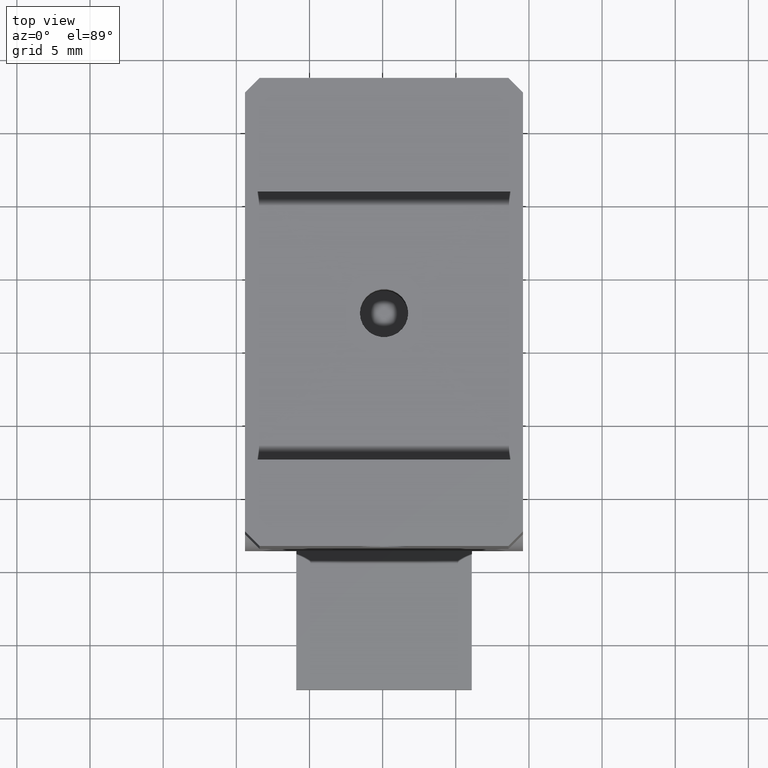
[diagram: clean part render]
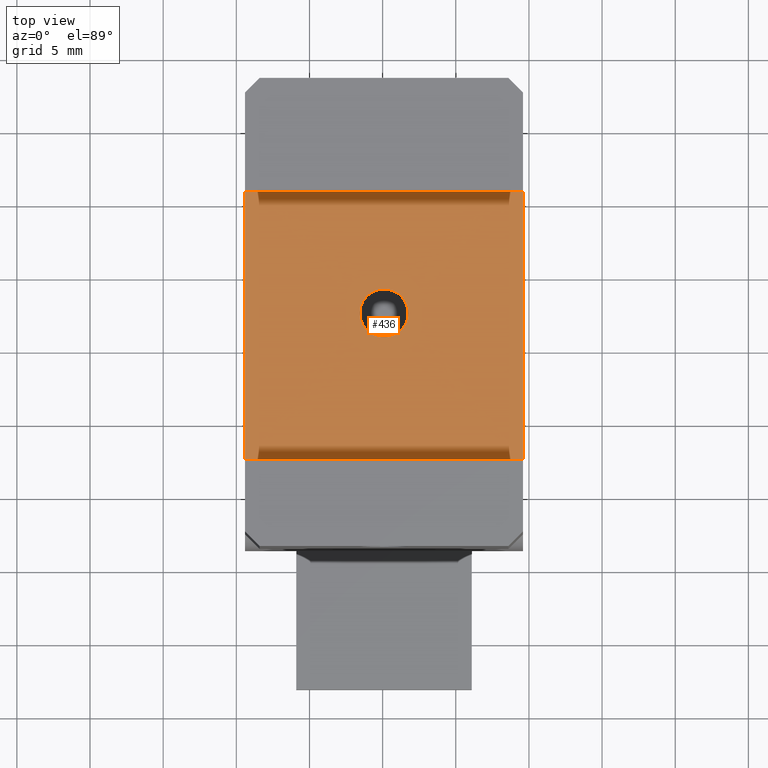
[diagram: same view with one face highlighted and labeled with its STEP entity id]
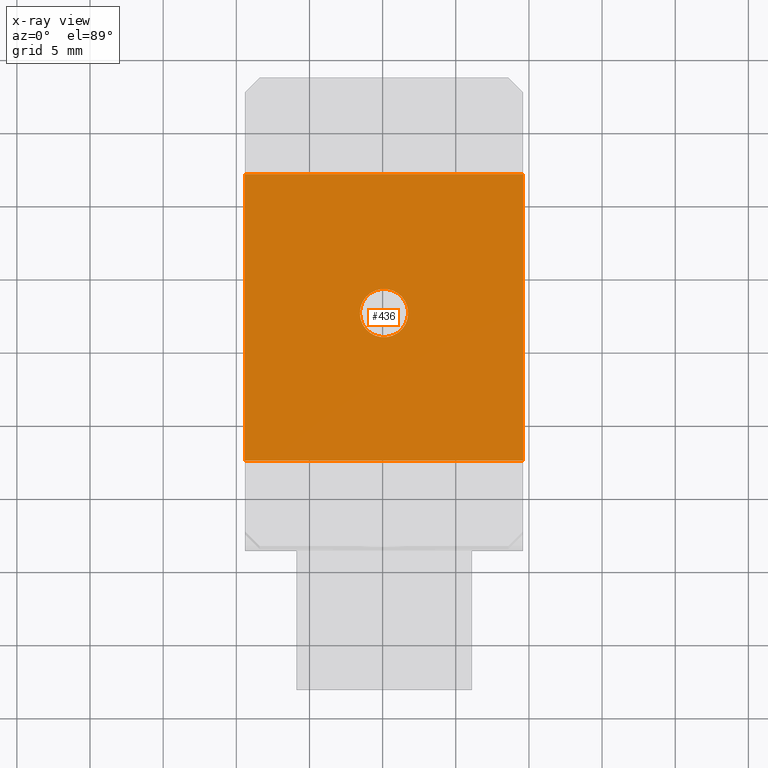
[diagram: x-ray of the same camera — body ghosted, the highlighted face saturated]
A machine part, top view. The second image highlights one B-rep face of the part: STEP entity #436.
The next image is the same camera in x-ray: the body ghosted, the highlighted face saturated — about 0% of this face is hidden behind the body in this view.
In plain terms, the highlighted planar face has unit normal (0, 0, -1).
Its self-contained STEP definition (entity closure, byte-faithful):
#212 = LINE ( 'NONE', #1165, #3088 ) ;
#287 = CIRCLE ( 'NONE', #641, 1.649999999999992600 ) ;
#296 = CARTESIAN_POINT ( 'NONE',  ( 4.593946590009584200, 11.95302670499544100, 32.60000000000000100 ) ) ;
#299 = EDGE_CURVE ( 'NONE', #3489, #1485, #2914, .T. ) ;
#370 = CARTESIAN_POINT ( 'NONE',  ( -14.40605340999041900, -7.646973295004563900, 32.60000000000000100 ) ) ;
#436 = ADVANCED_FACE ( 'NONE', ( #1196, #3068 ), #3148, .F. ) ;
#516 = LINE ( 'NONE', #370, #1395 ) ;
#550 = DIRECTION ( 'NONE',  ( -0.0000000000000000000, 0.0000000000000000000, -1.000000000000000000 ) ) ;
#591 = VERTEX_POINT ( 'NONE', #964 ) ;
#615 = AXIS2_PLACEMENT_3D ( 'NONE', #2545, #550, #2877 ) ;
#641 = AXIS2_PLACEMENT_3D ( 'NONE', #3904, #1926, #4232 ) ;
#646 = CARTESIAN_POINT ( 'NONE',  ( -14.40605340999042200, 11.95302670499543900, 32.60000000000000100 ) ) ;
#727 = CARTESIAN_POINT ( 'NONE',  ( -14.40605340999041900, -7.646973295004563900, 32.60000000000000100 ) ) ;
#867 = CIRCLE ( 'NONE', #615, 1.649999999999992600 ) ;
#891 = ORIENTED_EDGE ( 'NONE', *, *, #2777, .T. ) ;
#964 = CARTESIAN_POINT ( 'NONE',  ( 4.593946590009587700, -7.646973295004562100, 32.60000000000000100 ) ) ;
#1030 = VECTOR ( 'NONE', #2735, 1000.000000000000000 ) ;
#1099 = ORIENTED_EDGE ( 'NONE', *, *, #1953, .F. ) ;
#1165 = CARTESIAN_POINT ( 'NONE',  ( -14.40605340999041900, -7.646973295004563900, 32.60000000000000100 ) ) ;
#1196 = FACE_BOUND ( 'NONE', #1436, .T. ) ;
#1395 = VECTOR ( 'NONE', #3678, 1000.000000000000000 ) ;
#1436 = EDGE_LOOP ( 'NONE', ( #4112, #2220 ) ) ;
#1485 = VERTEX_POINT ( 'NONE', #296 ) ;
#1499 = DIRECTION ( 'NONE',  ( -1.000000000000000000, 0.0000000000000000000, 0.0000000000000000000 ) ) ;
#1926 = DIRECTION ( 'NONE',  ( -0.0000000000000000000, 0.0000000000000000000, -1.000000000000000000 ) ) ;
#1953 = EDGE_CURVE ( 'NONE', #2633, #3489, #212, .T. ) ;
#2173 = VERTEX_POINT ( 'NONE', #3812 ) ;
#2220 = ORIENTED_EDGE ( 'NONE', *, *, #3334, .T. ) ;
#2256 = ORIENTED_EDGE ( 'NONE', *, *, #3557, .T. ) ;
#2275 = CARTESIAN_POINT ( 'NONE',  ( -14.40605340999042200, 11.95302670499543900, 32.60000000000000100 ) ) ;
#2486 = DIRECTION ( 'NONE',  ( -1.770125995894701000E-016, 1.000000000000000000, 0.0000000000000000000 ) ) ;
#2545 = CARTESIAN_POINT ( 'NONE',  ( -4.906053409990414100, 2.453026704995435300, 32.60000000000000100 ) ) ;
#2633 = VERTEX_POINT ( 'NONE', #727 ) ;
#2735 = DIRECTION ( 'NONE',  ( 1.000000000000000000, 1.084202172485504400E-016, -0.0000000000000000000 ) ) ;
#2777 = EDGE_CURVE ( 'NONE', #591, #1485, #3346, .T. ) ;
#2816 = CARTESIAN_POINT ( 'NONE',  ( 4.593946590009587700, -7.646973295004562100, 32.60000000000000100 ) ) ;
#2824 = CARTESIAN_POINT ( 'NONE',  ( -14.40605340999041900, -7.646973295004563900, 32.60000000000000100 ) ) ;
#2877 = DIRECTION ( 'NONE',  ( -1.000000000000000000, 0.0000000000000000000, 0.0000000000000000000 ) ) ;
#2895 = AXIS2_PLACEMENT_3D ( 'NONE', #2824, #3481, #1499 ) ;
#2914 = LINE ( 'NONE', #2275, #1030 ) ;
#2985 = VERTEX_POINT ( 'NONE', #3327 ) ;
#3068 = FACE_OUTER_BOUND ( 'NONE', #3236, .T. ) ;
#3088 = VECTOR ( 'NONE', #4154, 1000.000000000000000 ) ;
#3148 = PLANE ( 'NONE',  #2895 ) ;
#3236 = EDGE_LOOP ( 'NONE', ( #891, #4295, #1099, #2256 ) ) ;
#3238 = VECTOR ( 'NONE', #2486, 1000.000000000000000 ) ;
#3327 = CARTESIAN_POINT ( 'NONE',  ( -3.256053409990420800, 2.453026704995435300, 32.60000000000000100 ) ) ;
#3334 = EDGE_CURVE ( 'NONE', #2985, #2173, #287, .T. ) ;
#3346 = LINE ( 'NONE', #2816, #3238 ) ;
#3481 = DIRECTION ( 'NONE',  ( 0.0000000000000000000, 0.0000000000000000000, -1.000000000000000000 ) ) ;
#3489 = VERTEX_POINT ( 'NONE', #646 ) ;
#3557 = EDGE_CURVE ( 'NONE', #2633, #591, #516, .T. ) ;
#3678 = DIRECTION ( 'NONE',  ( 1.000000000000000000, 1.084202172485504400E-016, -0.0000000000000000000 ) ) ;
#3812 = CARTESIAN_POINT ( 'NONE',  ( -6.556053409990406400, 2.453026704995435300, 32.60000000000000100 ) ) ;
#3904 = CARTESIAN_POINT ( 'NONE',  ( -4.906053409990414100, 2.453026704995435300, 32.60000000000000100 ) ) ;
#4073 = EDGE_CURVE ( 'NONE', #2173, #2985, #867, .T. ) ;
#4112 = ORIENTED_EDGE ( 'NONE', *, *, #4073, .T. ) ;
#4154 = DIRECTION ( 'NONE',  ( -1.770125995894701000E-016, 1.000000000000000000, 0.0000000000000000000 ) ) ;
#4232 = DIRECTION ( 'NONE',  ( -1.000000000000000000, 0.0000000000000000000, 0.0000000000000000000 ) ) ;
#4295 = ORIENTED_EDGE ( 'NONE', *, *, #299, .F. ) ;